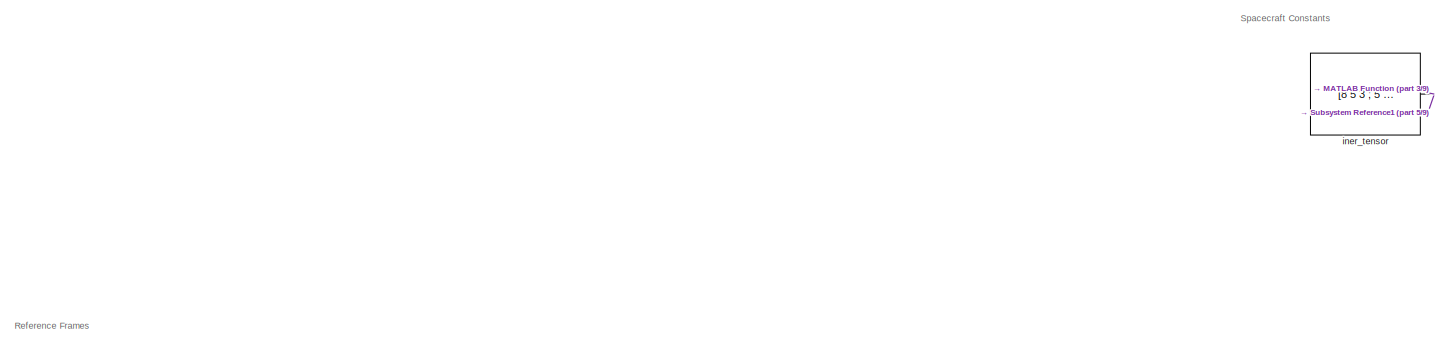
[diagram: root canvas - part 1/9, top left region]
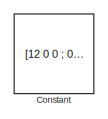
[diagram: root canvas - part 2/9, top right region]
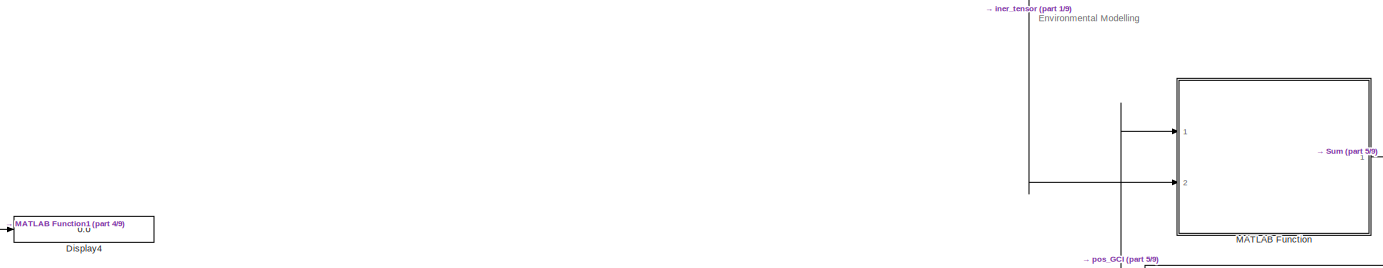
[diagram: root canvas - part 3/9, top left region]
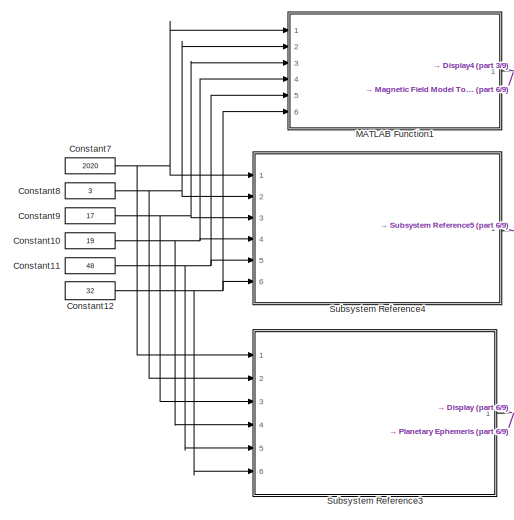
[diagram: root canvas - part 4/9, middle left region]
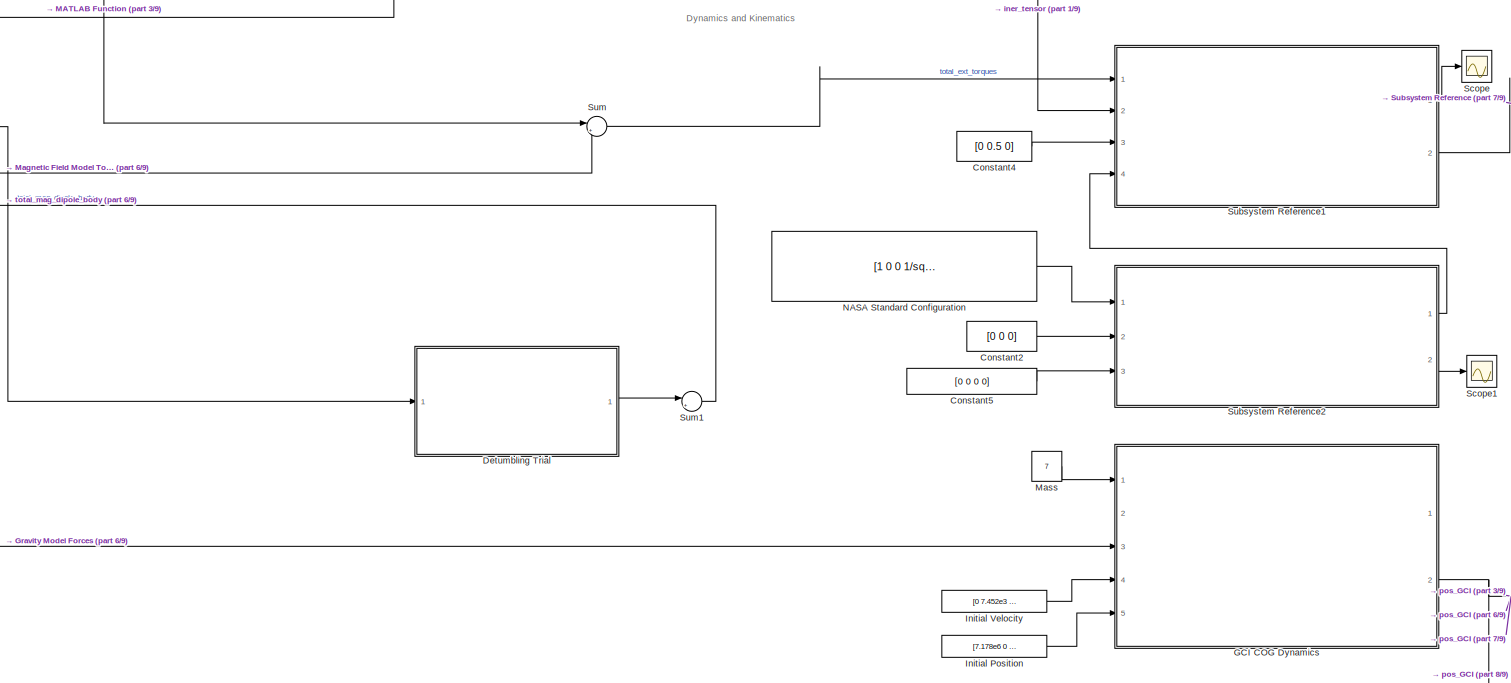
[diagram: root canvas - part 5/9, middle right region]
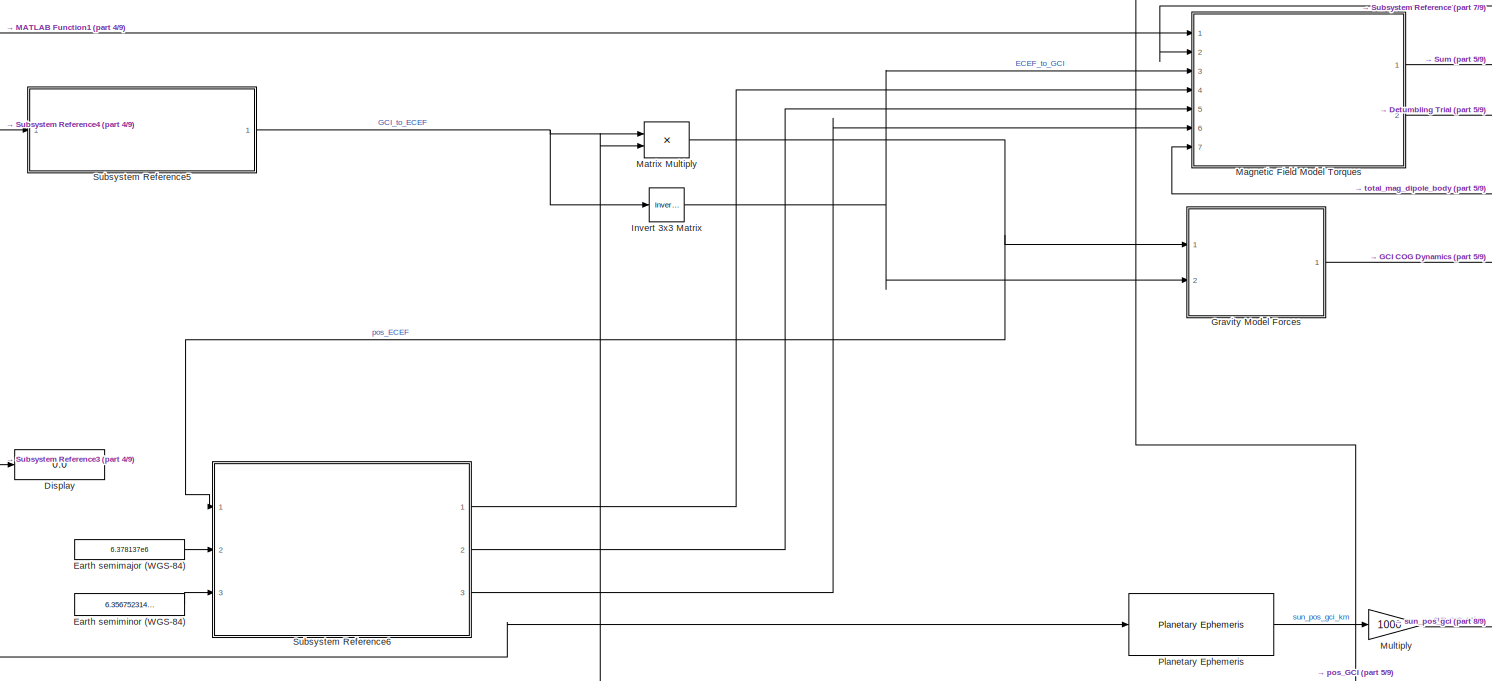
[diagram: root canvas - part 6/9, middle left region]
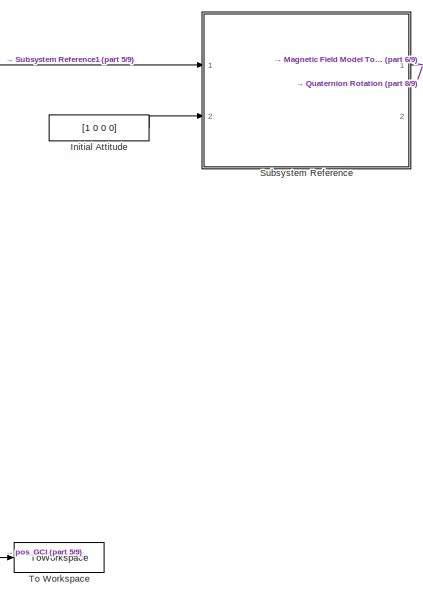
[diagram: root canvas - part 7/9, middle right region]
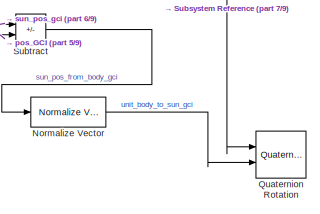
[diagram: root canvas - part 8/9, bottom center region]
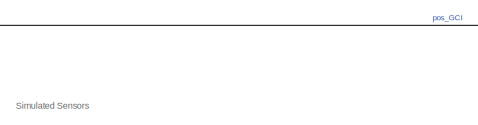
[diagram: root canvas - part 9/9, bottom center region]
MODEL slx_cd25e9145870
KIND model
CONFIG AbsTol = auto
CONFIG EnableMultiTasking = off
CONFIG FixedStep = 0.1
CONFIG MaxStep = 1
CONFIG MinStep = 0.01
CONFIG RelTol = 1e-3
CONFIG SampleTimeConstraint = Unconstrained
CONFIG SolverName = FixedStepAuto
CONFIG StartTime = 0.0
CONFIG StopTime = 3600
BLOCK [Constant] Constant
  Value = [12 0 0 ; 0 11 0 ; 0 0 10]
BLOCK [Constant] Constant10
  Value = 19
BLOCK [Constant] Constant11
  Value = 48
BLOCK [Constant] Constant12
  Value = 32
BLOCK [Constant] Constant2
  Value = [0 0 0]
BLOCK [Constant] Constant4
  Value = [0 0.5 0]
BLOCK [Constant] Constant5
  Value = [0 0 0 0]
BLOCK [Constant] Constant7
  Value = 2020
BLOCK [Constant] Constant8
  Value = 3
BLOCK [Constant] Constant9
  Value = 17
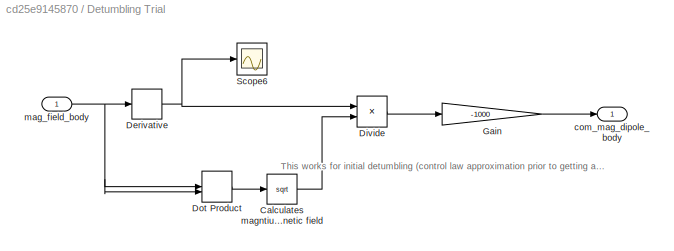
BLOCK [SubSystem] Detumbling Trial
  Ports = [1, 1]
  RequestExecContextInheritance = off
BLOCK [Sqrt] Detumbling Trial/Calculates magntiude of magnetic field
BLOCK [Derivative] Detumbling Trial/Derivative
BLOCK [Product] Detumbling Trial/Divide
  Inputs = */
  Ports = [2, 1]
BLOCK [DotProduct] Detumbling Trial/Dot Product
  OutDataTypeStr = Inherit: Inherit via internal rule
BLOCK [Gain] Detumbling Trial/Gain
  Gain = -1000
BLOCK [Scope] Detumbling Trial/Scope6
  Floating = off
  NumInputPorts = 1
  Ports = [1]
  ScopeSpecificationString = Simulink.scopes.TimeScopeBlockCfg('CurrentConfiguration', extmgr.ConfigurationSet(extmgr.Configuration('Core','General UI',true),extmgr.Configuration('Core','Source UI',true),extmgr.Configuration('Sources','WiredSimulink',true,'DataLoggingVariableName','ScopeData5'),extmgr.Configuration('Visuals','Time Domain',true,'SerializedDisplays',{struct('MinYLimReal','-0.0000003','MaxYLimReal','0.00000032',...<+1495ch>
BLOCK [Outport] Detumbling Trial/com_mag_dipole_body
BLOCK [Inport] Detumbling Trial/mag_field_body
BLOCK [Display] Display
  Decimation = 1
  Ports = [1]
BLOCK [Display] Display4
  Decimation = 1
  Format = long
  Ports = [1]
BLOCK [Constant] Earth semimajor (WGS-84)
  Value = 6.378137e6
BLOCK [Constant] Earth semiminor (WGS-84)
  Value = 6.3567523142e6
BLOCK [SubSystem] GCI COG Dynamics
  Ports = [5, 2]
  ReferencedSubsystem = cog_dyn_gci
  RequestExecContextInheritance = off
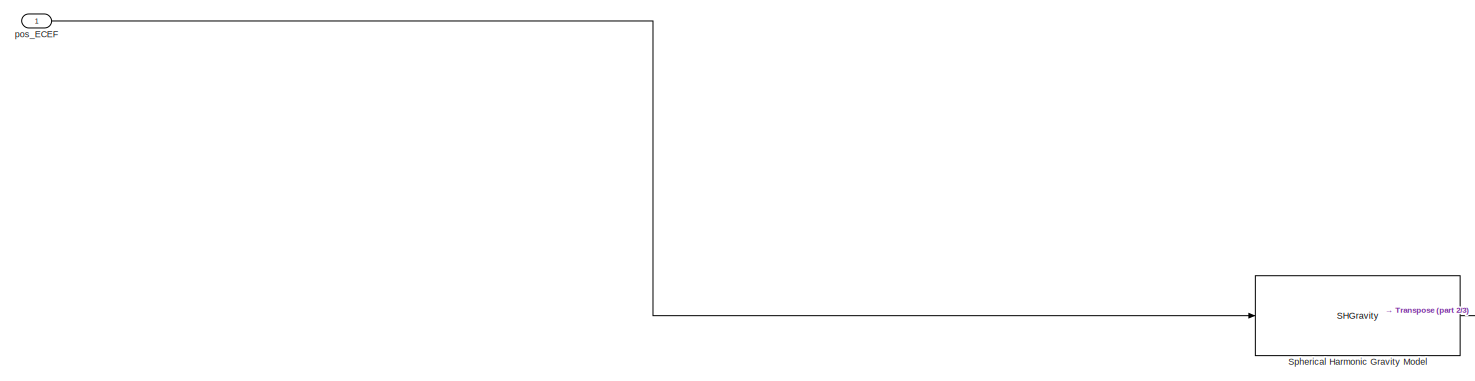
[diagram: Gravity Model Forces - part 1/3, left side, full height]
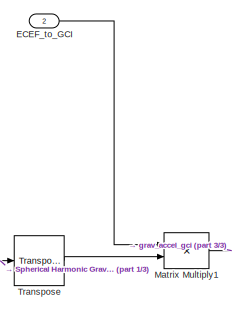
[diagram: Gravity Model Forces - part 2/3, center side, full height]
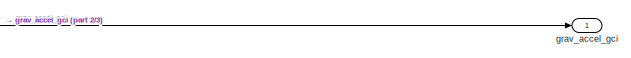
[diagram: Gravity Model Forces - part 3/3, bottom right region]
BLOCK [SubSystem] Gravity Model Forces
  Ports = [2, 1]
  RequestExecContextInheritance = off
BLOCK [Inport] Gravity Model Forces/ECEF_to_GCI
  Port = 2
BLOCK [Product] Gravity Model Forces/Matrix Multiply1
  Multiplication = Matrix(*)
  Ports = [2, 1]
BLOCK [SHGravity] Gravity Model Forces/Spherical Harmonic Gravity Model
  Ports = [1, 1]
BLOCK [Reference] Gravity Model Forces/Transpose  REF=matrix_library/Transpose
  Ports = [1, 1]
  SourceBlock = matrix_library/Transpose
  SourceProductBaseCode = SL
  SourceType = Transpose
BLOCK [Outport] Gravity Model Forces/grav_accel_gci
BLOCK [Inport] Gravity Model Forces/pos_ECEF
BLOCK [Constant] Initial Attitude
  Value = [1 0 0 0]
BLOCK [Constant] Initial Position
  Value = [7.178e6 0 0]
BLOCK [Constant] Initial Velocity
  Value = [0 7.452e3 0]
BLOCK [Reference] Invert 3x3 Matrix  REF=aerolibutil/Invert 
3x3 Matrix
  Ports = [1, 1]
  SourceBlock = aerolibutil/Invert \n3x3 Matrix
  SourceProductBaseCode = AE
  SourceType = Invert 3x3 Matrix
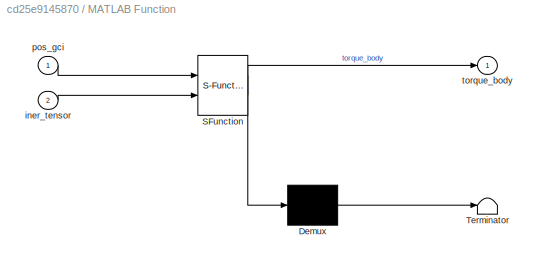
BLOCK [SubSystem] MATLAB Function
  ErrorFcn = Stateflow.Translate.translate
  PermitHierarchicalResolution = ExplicitOnly
  Ports = [2, 1]
  RequestExecContextInheritance = off
  SFBlockType = MATLAB Function
  TreatAsAtomicUnit = on
BLOCK [Demux] MATLAB Function/ Demux 
  Outputs = 1
  Ports = [1, 1]
BLOCK [S-Function] MATLAB Function/ SFunction 
  EnableBusSupport = on
  FunctionName = sf_sfun
  PortCounts = [2 2]
  Ports = [2, 2]
  SFcnIsStateOwnerBlock = off
  SFunctionDeploymentMode = off
  Tag = Stateflow S-Function 4
BLOCK [Terminator] MATLAB Function/ Terminator 
BLOCK [Inport] MATLAB Function/iner_tensor
  Port = 2
BLOCK [Inport] MATLAB Function/pos_gci
BLOCK [Outport] MATLAB Function/torque_body
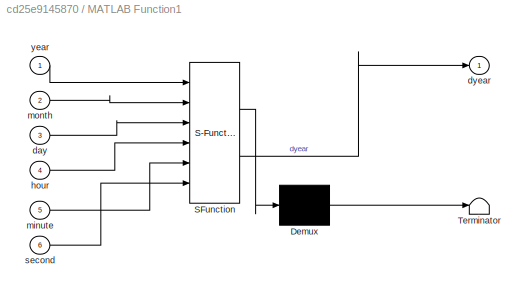
BLOCK [SubSystem] MATLAB Function1
  ErrorFcn = Stateflow.Translate.translate
  PermitHierarchicalResolution = ExplicitOnly
  Ports = [6, 1]
  RequestExecContextInheritance = off
  SFBlockType = MATLAB Function
  TreatAsAtomicUnit = on
BLOCK [Demux] MATLAB Function1/ Demux 
  Outputs = 1
  Ports = [1, 1]
BLOCK [S-Function] MATLAB Function1/ SFunction 
  EnableBusSupport = on
  FunctionName = sf_sfun
  PortCounts = [6 2]
  Ports = [6, 2]
  SFcnIsStateOwnerBlock = off
  SFunctionDeploymentMode = off
  Tag = Stateflow S-Function 6
BLOCK [Terminator] MATLAB Function1/ Terminator 
BLOCK [Inport] MATLAB Function1/day
  Port = 3
BLOCK [Outport] MATLAB Function1/dyear
BLOCK [Inport] MATLAB Function1/hour
  Port = 4
BLOCK [Inport] MATLAB Function1/minute
  Port = 5
BLOCK [Inport] MATLAB Function1/month
  Port = 2
BLOCK [Inport] MATLAB Function1/second
  Port = 6
BLOCK [Inport] MATLAB Function1/year
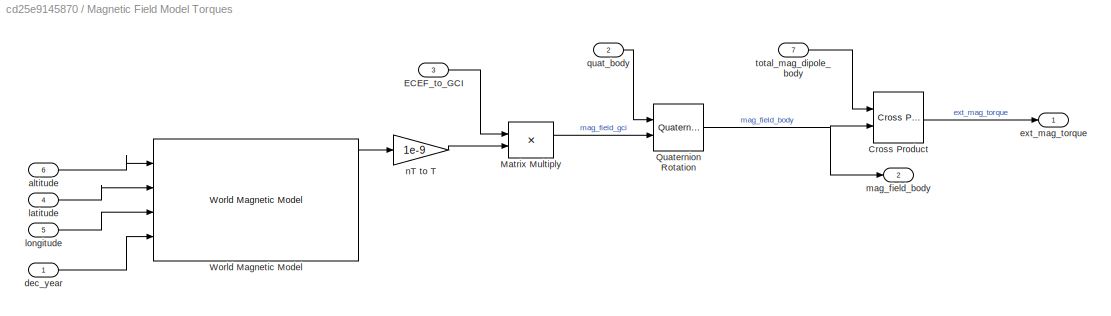
BLOCK [SubSystem] Magnetic Field Model Torques
  Ports = [7, 2]
  RequestExecContextInheritance = off
BLOCK [Reference] Magnetic Field Model Torques/Cross Product  REF=matrix_library/Cross Product
  Ports = [2, 1]
  SourceBlock = matrix_library/Cross Product
  SourceProductBaseCode = SL
  SourceType = CrossProduct
BLOCK [Inport] Magnetic Field Model Torques/ECEF_to_GCI
  Port = 3
BLOCK [Product] Magnetic Field Model Torques/Matrix Multiply
  Multiplication = Matrix(*)
  Ports = [2, 1]
BLOCK [Reference] Magnetic Field Model Torques/Quaternion Rotation  REF=aerolibutil/Quaternion
Rotation
  Ports = [2, 1]
  SourceBlock = aerolibutil/Quaternion\nRotation
  SourceProductBaseCode = AE
  SourceType = Quaternion Rotation
BLOCK [Reference] Magnetic Field Model Torques/World Magnetic Model  REF=aerolibgravity2/World Magnetic Model
  AttributesFormatString = %<model>
  Ports = [4, 5]
  SourceBlock = aerolibgravity2/World Magnetic Model
  SourceProductBaseCode = AE
  SourceType = WorldMagneticModel
BLOCK [Inport] Magnetic Field Model Torques/altitude
  Port = 6
BLOCK [Inport] Magnetic Field Model Torques/dec_year
BLOCK [Outport] Magnetic Field Model Torques/ext_mag_torque
BLOCK [Inport] Magnetic Field Model Torques/latitude
  Port = 4
BLOCK [Inport] Magnetic Field Model Torques/longitude
  Port = 5
BLOCK [Outport] Magnetic Field Model Torques/mag_field_body
  Port = 2
BLOCK [Gain] Magnetic Field Model Torques/nT to T
  Gain = 1e-9
BLOCK [Inport] Magnetic Field Model Torques/quat_body
  Port = 2
BLOCK [Inport] Magnetic Field Model Torques/total_mag_dipole_body
  Port = 7
BLOCK [Constant] Mass
  Value = 7
BLOCK [Product] Matrix Multiply
  Multiplication = Matrix(*)
  Ports = [2, 1]
BLOCK [Gain] Multiply
  Gain = 1000
BLOCK [Constant] NASA Standard Configuration
  Value = [1 0 0 1/sqrt(3) ; 0 1 0 1/sqrt(3) ; 0 0 1 1/sqrt(3)]
BLOCK [Reference] Normalize Vector  REF=vrlib/Utilities/Normalize Vector
  Ports = [1, 1]
  SourceBlock = vrlib/Utilities/Normalize Vector
  SourceProductBaseCode = SL
  SourceType = Normalize Vector
BLOCK [Reference] Planetary Ephemeris  REF=aerolibcelestial/Planetary Ephemeris
  Ports = [1, 1]
  SourceBlock = aerolibcelestial/Planetary Ephemeris
  SourceProductBaseCode = AE
  SourceType = PlanetaryEphemeris
BLOCK [Reference] Quaternion Rotation  REF=aerolibutil/Quaternion
Rotation
  Ports = [2, 1]
  SourceBlock = aerolibutil/Quaternion\nRotation
  SourceProductBaseCode = AE
  SourceType = Quaternion Rotation
BLOCK [Scope] Scope
  Floating = off
  NumInputPorts = 1
  Ports = [1]
  ScopeSpecificationString = Simulink.scopes.TimeScopeBlockCfg('CurrentConfiguration', extmgr.ConfigurationSet(extmgr.Configuration('Core','General UI',true),extmgr.Configuration('Core','Source UI',true),extmgr.Configuration('Sources','WiredSimulink',true,'DataLoggingVariableName','ScopeData1'),extmgr.Configuration('Visuals','Time Domain',true,'SerializedDisplays',{struct('MinYLimReal','-0.48272','MaxYLimReal','0.60919','YLab...<+1514ch>
BLOCK [Scope] Scope1
  Floating = off
  NumInputPorts = 1
  Ports = [1]
  ScopeSpecificationString = Simulink.scopes.TimeScopeBlockCfg('CurrentConfiguration', extmgr.ConfigurationSet(extmgr.Configuration('Core','General UI',true),extmgr.Configuration('Core','Source UI',true),extmgr.Configuration('Sources','WiredSimulink',true,'DataLoggingVariableName','ScopeData2'),extmgr.Configuration('Visuals','Time Domain',true,'SerializedDisplays',{struct('MinYLimReal','-1.00000','MaxYLimReal','1.00000','YLab...<+1494ch>
BLOCK [SubSystem] Subsystem Reference
  Ports = [2, 2]
  ReferencedSubsystem = quat_kin_body
  RequestExecContextInheritance = off
BLOCK [SubSystem] Subsystem Reference1
  Ports = [4, 2]
  ReferencedSubsystem = quat_dyn_body_w_wheels
  RequestExecContextInheritance = off
BLOCK [SubSystem] Subsystem Reference2
  Ports = [3, 2]
  ReferencedSubsystem = wheel_dyn
  RequestExecContextInheritance = off
BLOCK [SubSystem] Subsystem Reference3
  Ports = [6, 1]
  ReferencedSubsystem = JD_from_datetime
  RequestExecContextInheritance = off
BLOCK [SubSystem] Subsystem Reference4
  Ports = [6, 1]
  ReferencedSubsystem = GMST_angle_from_datetime
  RequestExecContextInheritance = off
BLOCK [SubSystem] Subsystem Reference5
  Ports = [1, 1]
  ReferencedSubsystem = GCI_to_ECEF
  RequestExecContextInheritance = off
BLOCK [SubSystem] Subsystem Reference6
  Ports = [3, 3]
  ReferencedSubsystem = ECEF_coords_to_geodetic
  RequestExecContextInheritance = off
BLOCK [Sum] Subtract
  IconShape = rectangular
  Inputs = +-
  Ports = [2, 1]
BLOCK [Sum] Sum
  Inputs = |++
  Ports = [2, 1]
BLOCK [Sum] Sum1
  Inputs = |++
  Ports = [2, 1]
BLOCK [ToWorkspace] To Workspace
  FixptAsFi = on
  MaxDataPoints = inf
  Ports = [1]
  SampleTime = -1
  VariableName = pos_GCI
BLOCK [Constant] iner_tensor
  Value = [8 5 3 ; 5 10 4 ; 3 4 11]
ANNOTATION (root): Dynamics and Kinematics
ANNOTATION (root): Environmental Modelling
ANNOTATION (root): Reference Frames
ANNOTATION (root): Simulated Sensors
ANNOTATION (root): Spacecraft Constants
ANNOTATION Detumbling Trial: This works for initial detumbling (control law approximation prior to getting attitude estimates)!! Note reaction wheel control laws disabled (other magnetorquer control law will be needed for momentum dumping but we have formula).
NET Constant10:1 -> MATLAB Function1:4, Subsystem Reference3:4, Subsystem Reference4:4
NET Constant11:1 -> MATLAB Function1:5, Subsystem Reference3:5, Subsystem Reference4:5
NET Constant12:1 -> MATLAB Function1:6, Subsystem Reference3:6, Subsystem Reference4:6
LINE Constant2:1 -> Subsystem Reference2:2
LINE Constant4:1 -> Subsystem Reference1:3
LINE Constant5:1 -> Subsystem Reference2:3
NET Constant7:1 -> MATLAB Function1:1, Subsystem Reference3:1, Subsystem Reference4:1
NET Constant8:1 -> MATLAB Function1:2, Subsystem Reference3:2, Subsystem Reference4:2
NET Constant9:1 -> MATLAB Function1:3, Subsystem Reference3:3, Subsystem Reference4:3
LINE Detumbling Trial/Calculates magntiude of magnetic field:1 -> Detumbling Trial/Divide:2
NET Detumbling Trial/Derivative:1 -> Detumbling Trial/Divide:1, Detumbling Trial/Scope6:1
LINE Detumbling Trial/Divide:1 -> Detumbling Trial/Gain:1
LINE Detumbling Trial/Dot Product:1 -> Detumbling Trial/Calculates magntiude of magnetic field:1
LINE Detumbling Trial/Gain:1 -> Detumbling Trial/com_mag_dipole_body:1
NET Detumbling Trial/mag_field_body:1 -> Detumbling Trial/Derivative:1, Detumbling Trial/Dot Product:1, Detumbling Trial/Dot Product:2
LINE Detumbling Trial:1 -> Sum1:1
LINE Earth semimajor (WGS-84):1 -> Subsystem Reference6:2
LINE Earth semiminor (WGS-84):1 -> Subsystem Reference6:3
NET GCI COG Dynamics:2 -> MATLAB Function:1, Matrix Multiply:2, Subtract:2, To Workspace:1
LINE Gravity Model Forces/ECEF_to_GCI:1 -> Gravity Model Forces/Matrix Multiply1:1
LINE Gravity Model Forces/Matrix Multiply1:1 -> Gravity Model Forces/grav_accel_gci:1
LINE Gravity Model Forces/Spherical Harmonic Gravity Model:1 -> Gravity Model Forces/Transpose:1
LINE Gravity Model Forces/Transpose:1 -> Gravity Model Forces/Matrix Multiply1:2
LINE Gravity Model Forces/pos_ECEF:1 -> Gravity Model Forces/Spherical Harmonic Gravity Model:1
LINE Gravity Model Forces:1 -> GCI COG Dynamics:3
LINE Initial Attitude:1 -> Subsystem Reference:2
LINE Initial Position:1 -> GCI COG Dynamics:5
LINE Initial Velocity:1 -> GCI COG Dynamics:4
NET Invert 3x3 Matrix:1 -> Gravity Model Forces:2, Magnetic Field Model Torques:3
NET MATLAB Function1:1 -> Display4:1, Magnetic Field Model Torques:1
LINE MATLAB Function:1 -> Sum:1
LINE Magnetic Field Model Torques/Cross Product:1 -> Magnetic Field Model Torques/ext_mag_torque:1
LINE Magnetic Field Model Torques/ECEF_to_GCI:1 -> Magnetic Field Model Torques/Matrix Multiply:1
LINE Magnetic Field Model Torques/Matrix Multiply:1 -> Magnetic Field Model Torques/Quaternion Rotation:2
NET Magnetic Field Model Torques/Quaternion Rotation:1 -> Magnetic Field Model Torques/Cross Product:2, Magnetic Field Model Torques/mag_field_body:1
LINE Magnetic Field Model Torques/World Magnetic Model:1 -> Magnetic Field Model Torques/nT to T:1
LINE Magnetic Field Model Torques/altitude:1 -> Magnetic Field Model Torques/World Magnetic Model:1
LINE Magnetic Field Model Torques/dec_year:1 -> Magnetic Field Model Torques/World Magnetic Model:4
LINE Magnetic Field Model Torques/latitude:1 -> Magnetic Field Model Torques/World Magnetic Model:2
LINE Magnetic Field Model Torques/longitude:1 -> Magnetic Field Model Torques/World Magnetic Model:3
LINE Magnetic Field Model Torques/nT to T:1 -> Magnetic Field Model Torques/Matrix Multiply:2
LINE Magnetic Field Model Torques/quat_body:1 -> Magnetic Field Model Torques/Quaternion Rotation:1
LINE Magnetic Field Model Torques/total_mag_dipole_body:1 -> Magnetic Field Model Torques/Cross Product:1
LINE Magnetic Field Model Torques:1 -> Sum:2
LINE Magnetic Field Model Torques:2 -> Detumbling Trial:1
LINE Mass:1 -> GCI COG Dynamics:1
NET Matrix Multiply:1 -> Gravity Model Forces:1, Subsystem Reference6:1
LINE Multiply:1 -> Subtract:1
LINE NASA Standard Configuration:1 -> Subsystem Reference2:1
LINE Normalize Vector:1 -> Quaternion Rotation:2
LINE Planetary Ephemeris:1 -> Multiply:1
LINE Subsystem Reference1:1 -> Scope:1
LINE Subsystem Reference1:2 -> Subsystem Reference:1
LINE Subsystem Reference2:1 -> Subsystem Reference1:4
LINE Subsystem Reference2:2 -> Scope1:1
NET Subsystem Reference3:1 -> Display:1, Planetary Ephemeris:1
LINE Subsystem Reference4:1 -> Subsystem Reference5:1
NET Subsystem Reference5:1 -> Invert 3x3 Matrix:1, Matrix Multiply:1
LINE Subsystem Reference6:1 -> Magnetic Field Model Torques:4
LINE Subsystem Reference6:2 -> Magnetic Field Model Torques:5
LINE Subsystem Reference6:3 -> Magnetic Field Model Torques:6
NET Subsystem Reference:1 -> Magnetic Field Model Torques:2, Quaternion Rotation:1
LINE Subtract:1 -> Normalize Vector:1
LINE Sum1:1 -> Magnetic Field Model Torques:7
LINE Sum:1 -> Subsystem Reference1:1
NET iner_tensor:1 -> MATLAB Function:2, Subsystem Reference1:2
note: NET lines group one-source signal fan-out (src -> all destinations, sorted); 1:1 wires keep LINE
CHART MATLAB Function states=1 transitions=1
  STATE_LABEL 'eML_blk_kernel()'
  STATE_LABEL 'SCRIPT:\nfunction torque_body  = grav_grad_torque(pos_gci, iner_tensor)\n    % mass of earth, grav constant\n    m_e = 5.97219e24;\n    G = 6.67430e-11;\n\n    % grav param\n    u = G*m_e;\n\n    radius = norm(pos_gci);\n    nadir_vec = -normalize(pos_gci);\n    torque_body = cross(3*u/radius^3*nadir_vec, ...\n        iner_tensor*nadir_vec);'
CHART MATLAB Function1 states=1 transitions=1
  STATE_LABEL 'eML_blk_kernel()'
  STATE_LABEL 'SCRIPT:\nfunction dyear = dyear_from_datetime(year, month, day, hour, minute, second)\n    % sequentially builds the decimal year\n    tot_mins = minute + second/60; % use 61 for leap second days? probably fine\n    tot_hours = hour + tot_mins / 60;\n    tot_days = day + tot_hours / 24;\n    tot_months = month + tot_days / (275/9); % average days in month across year\n    tot_years = year + tot_months / ...<+28ch>'
CHART  states=0 transitions=0
CHART  states=0 transitions=0
